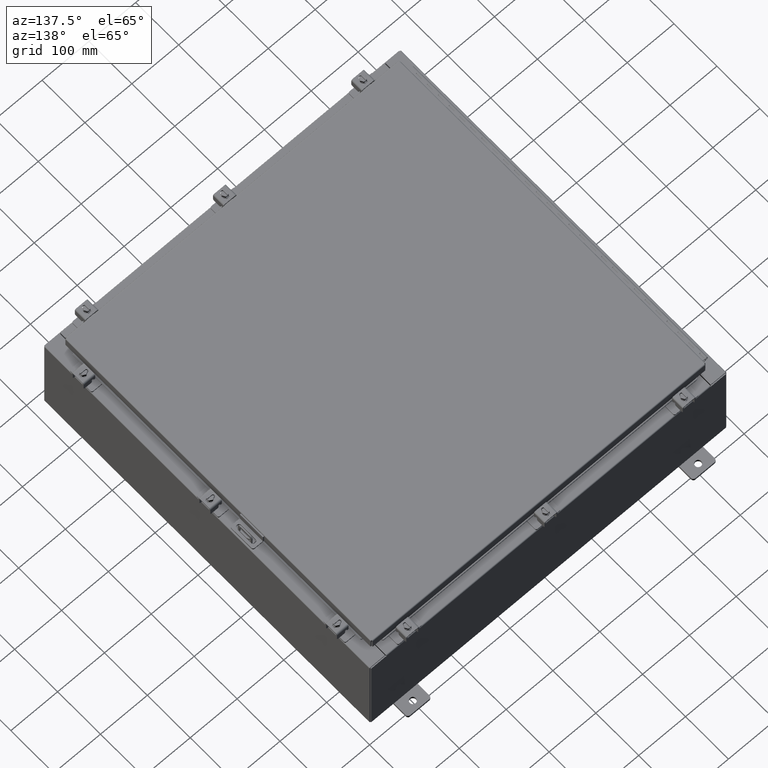
[diagram: clean part render]
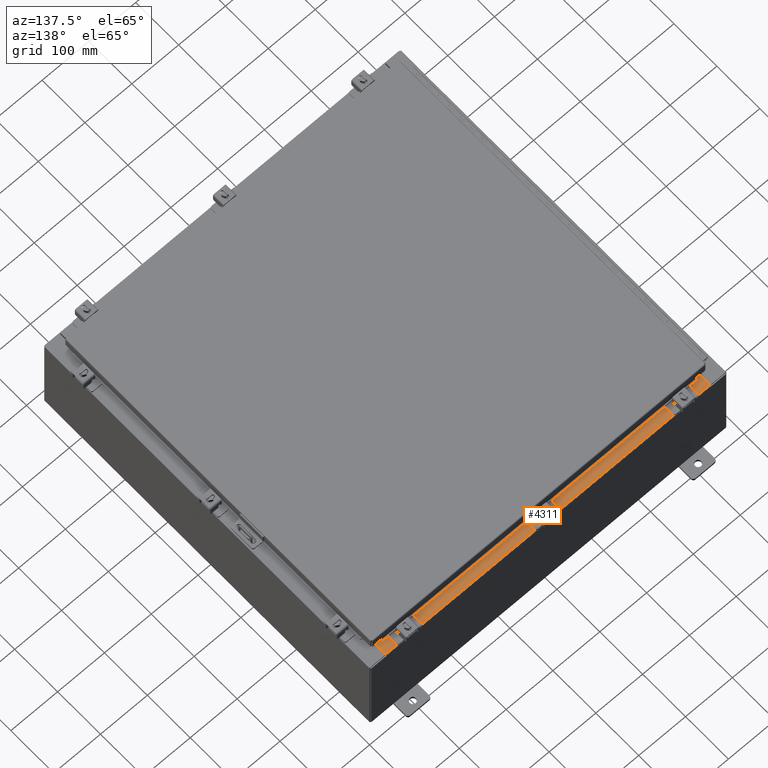
[diagram: same view with one face highlighted and labeled with its STEP entity id]
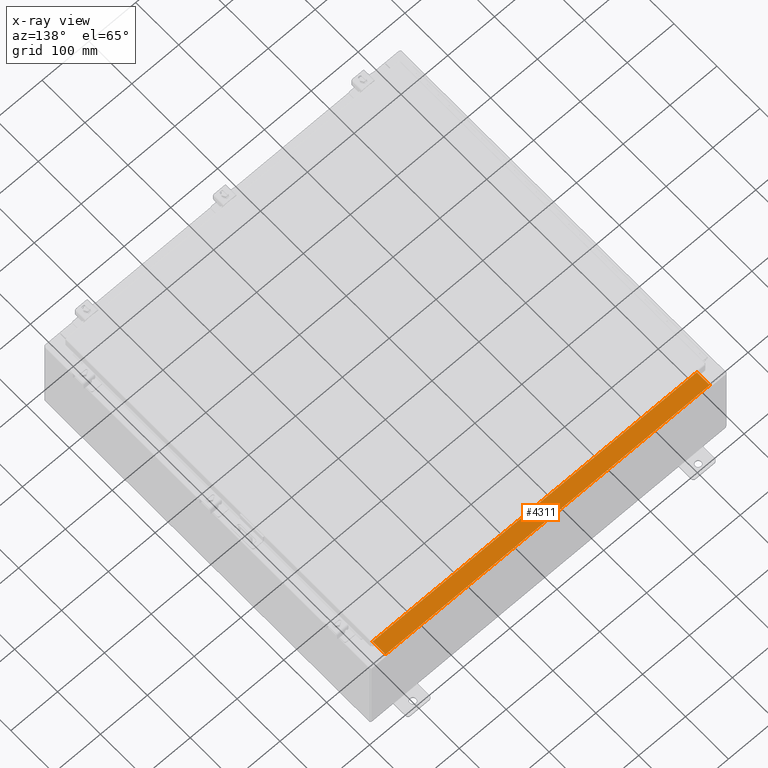
[diagram: x-ray of the same camera — body ghosted, the highlighted face saturated]
A machine part, auxiliary view. The second image highlights one B-rep face of the part: STEP entity #4311.
The next image is the same camera in x-ray: the body ghosted, the highlighted face saturated — about 0% of this face is hidden behind the body in this view.
In plain terms, the highlighted planar face has unit normal (0, 0, 1).
Its self-contained STEP definition (entity closure, byte-faithful):
#49 = ORIENTED_EDGE ( 'NONE', *, *, #14555, .T. ) ;
#234 = DIRECTION ( 'NONE',  ( -1.000000000000000000, 0.0000000000000000000, 0.0000000000000000000 ) ) ;
#438 = CARTESIAN_POINT ( 'NONE',  ( 0.0000000000000000000, 1.425992975200418500E-014, 4.000000000000000000 ) ) ;
#2137 = PLANE ( 'NONE',  #18332 ) ;
#4311 = ADVANCED_FACE ( 'NONE', ( #14788 ), #2137, .T. ) ;
#5901 = DIRECTION ( 'NONE',  ( 0.0000000000000000000, -1.000000000000000000, 3.566381192773190000E-015 ) ) ;
#6457 = CARTESIAN_POINT ( 'NONE',  ( 13.63720000000000400, -0.08769999999999965300, 4.000000000000000000 ) ) ;
#8367 = ORIENTED_EDGE ( 'NONE', *, *, #15843, .F. ) ;
#8507 = CARTESIAN_POINT ( 'NONE',  ( -1.756834753793995900E-018, -0.08770000000000000000, 4.000000000000000900 ) ) ;
#8600 = VECTOR ( 'NONE', #11246, 39.37007874015748100 ) ;
#8626 = DIRECTION ( 'NONE',  ( -1.000000000000000000, 2.003232330437526000E-017, -7.144290108027600900E-032 ) ) ;
#8926 = CARTESIAN_POINT ( 'NONE',  ( -13.63719999999999800, -1.287299999999999200, 4.000000000000004400 ) ) ;
#10521 = CARTESIAN_POINT ( 'NONE',  ( 13.63720000000000400, -1.287299999999999900, 4.000000000000004400 ) ) ;
#11246 = DIRECTION ( 'NONE',  ( -0.0000000000000000000, -1.000000000000000000, 3.566381192773190000E-015 ) ) ;
#11405 = VECTOR ( 'NONE', #8626, 39.37007874015748100 ) ;
#11563 = VERTEX_POINT ( 'NONE', #6457 ) ;
#11645 = DIRECTION ( 'NONE',  ( -0.0000000000000000000, 1.000000000000000000, -3.566381192773190000E-015 ) ) ;
#12557 = VERTEX_POINT ( 'NONE', #10521 ) ;
#14555 = EDGE_CURVE ( 'NONE', #11563, #33482, #36069, .T. ) ;
#14661 = EDGE_CURVE ( 'NONE', #12557, #27704, #38399, .T. ) ;
#14788 = FACE_OUTER_BOUND ( 'NONE', #32021, .T. ) ;
#15843 = EDGE_CURVE ( 'NONE', #11563, #12557, #32312, .T. ) ;
#18007 = ORIENTED_EDGE ( 'NONE', *, *, #14661, .F. ) ;
#18027 = EDGE_CURVE ( 'NONE', #27704, #33482, #23727, .T. ) ;
#18332 = AXIS2_PLACEMENT_3D ( 'NONE', #438, #26788, #5901 ) ;
#23727 = LINE ( 'NONE', #32447, #32616 ) ;
#25432 = CARTESIAN_POINT ( 'NONE',  ( -13.63719999999999800, -0.08770000000000000000, 4.000000000000000000 ) ) ;
#26788 = DIRECTION ( 'NONE',  ( 0.0000000000000000000, 3.566381192773190000E-015, 1.000000000000000000 ) ) ;
#26895 = CARTESIAN_POINT ( 'NONE',  ( 13.63720000000000400, -1.287299999999999900, 4.000000000000003600 ) ) ;
#27704 = VERTEX_POINT ( 'NONE', #8926 ) ;
#30445 = VECTOR ( 'NONE', #234, 39.37007874015748100 ) ;
#31085 = ORIENTED_EDGE ( 'NONE', *, *, #18027, .F. ) ;
#32021 = EDGE_LOOP ( 'NONE', ( #31085, #18007, #8367, #49 ) ) ;
#32040 = CARTESIAN_POINT ( 'NONE',  ( 13.63720000000000400, -1.300299999999999800, 4.000000000000004400 ) ) ;
#32312 = LINE ( 'NONE', #32040, #8600 ) ;
#32447 = CARTESIAN_POINT ( 'NONE',  ( -13.63719999999999800, -0.07469999999999973900, 4.000000000000000000 ) ) ;
#32616 = VECTOR ( 'NONE', #11645, 39.37007874015748100 ) ;
#33482 = VERTEX_POINT ( 'NONE', #25432 ) ;
#36069 = LINE ( 'NONE', #8507, #11405 ) ;
#38399 = LINE ( 'NONE', #26895, #30445 ) ;